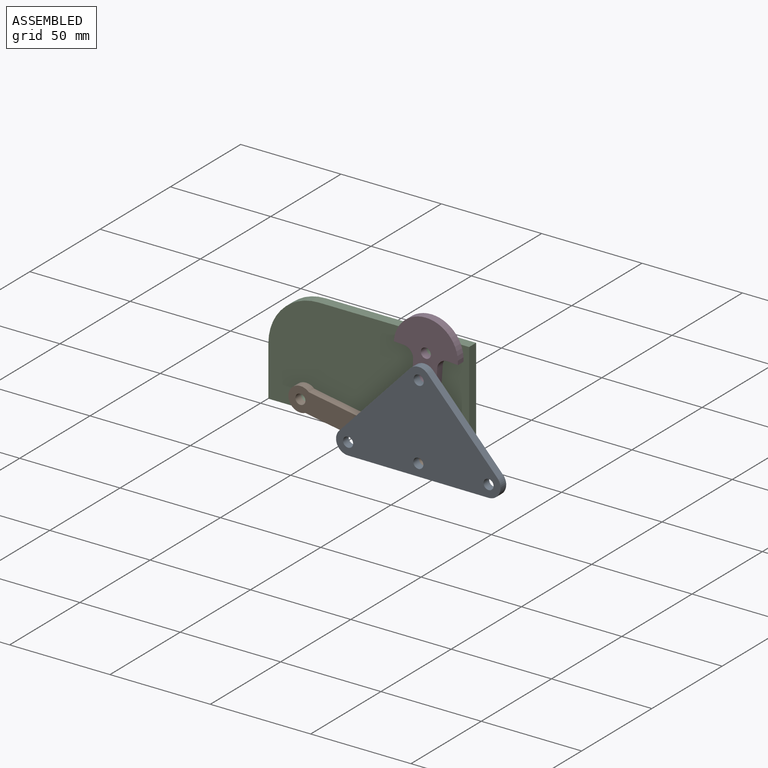
[diagram: assembled view]
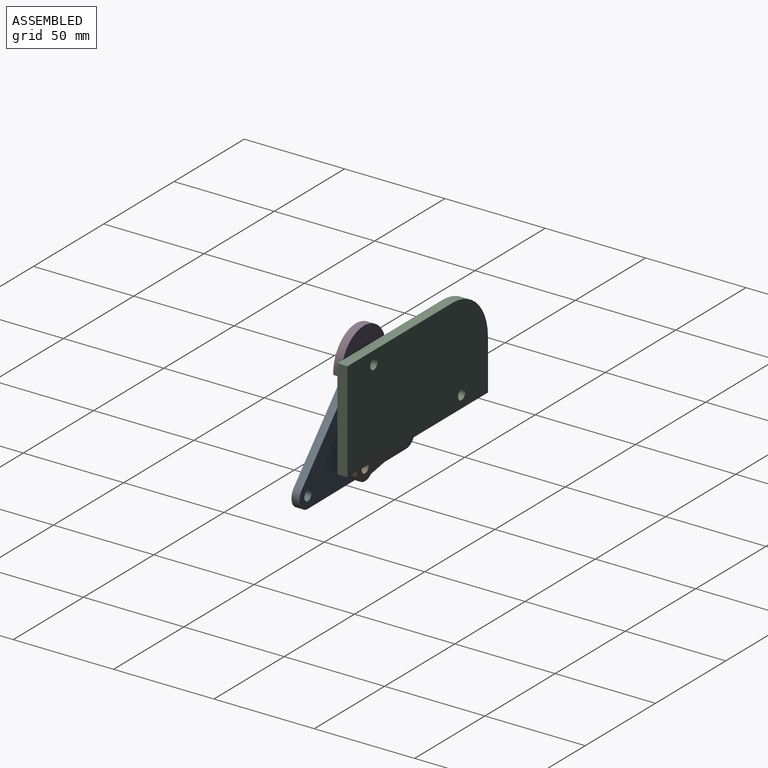
[diagram: assembled view, second angle]
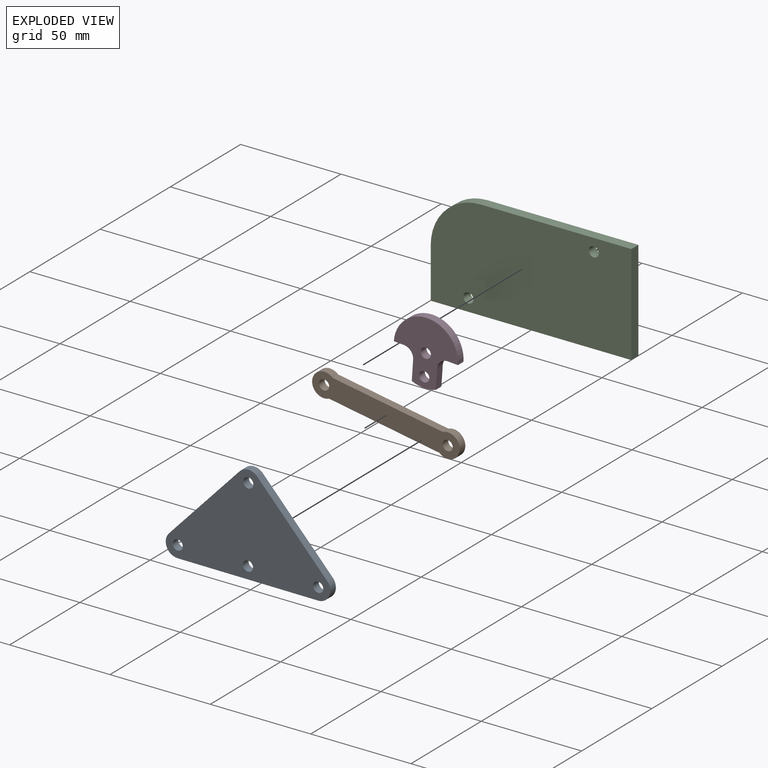
[diagram: exploded view]
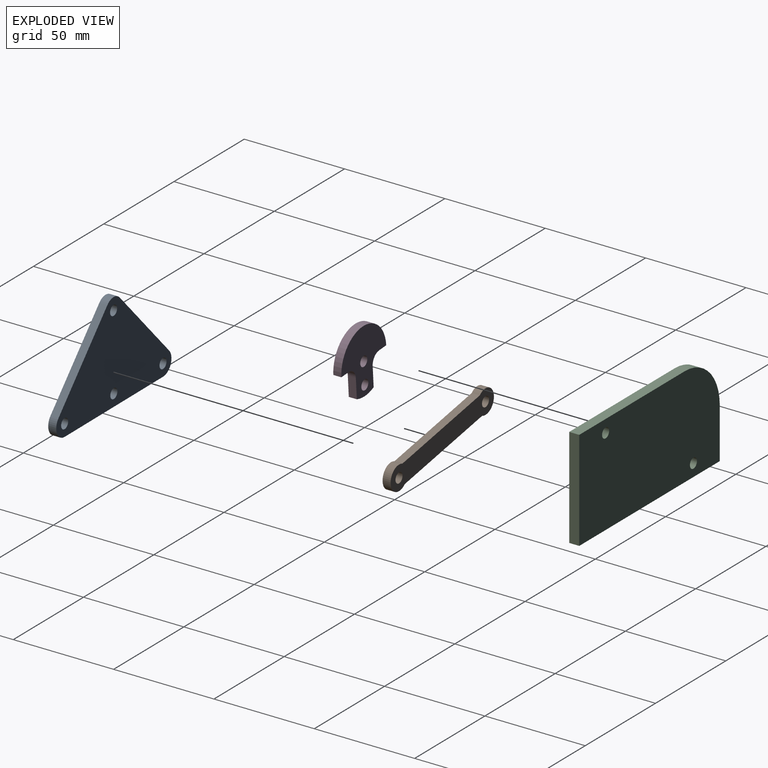
[diagram: exploded view, second angle]
ASSEMBLY  parts=4 mates=4
PART A: 12 faces, bbox 82x4x49.5 mm
  f0: plane 70.28x4mm, normal (0,0,-1), area 281.1mm2, adj f1,f9,f10,f11
  f1: cylinder r=6mm len=10.27mm, axis (0,1,0), area 56.1mm2, adj f0,f2,f10,f11
  f2: plane 37.32x34.83mm, normal (0.73,0,0.68), area 204.2mm2, adj f1,f3,f10,f11
  f3: cylinder r=6mm len=8.77mm, axis (0,1,0), area 39.4mm2, adj f2,f4,f10,f11
  f4: plane 37.32x34.83mm, normal (-0.73,0,0.68), area 204.2mm2, adj f3,f9,f10,f11
  f5: cylinder r=2.5mm len=5mm, axis (0,1,0), area 62.8mm2, adj f10,f11
  f6: cylinder r=2.5mm len=5mm, axis (0,1,0), area 62.8mm2, adj f10,f11
  f7: cylinder r=2.5mm len=5mm, axis (0,1,0), area 62.8mm2, adj f10,f11
  f8: cylinder r=2.5mm len=5mm, axis (0,1,0), area 62.8mm2, adj f10,f11
  f9: cylinder r=6mm len=10.27mm, axis (0,1,0), area 56.1mm2, adj f0,f4,f10,f11
  f10: plane 82x49.5mm, normal (0,-1,0), area 2382.2mm2, adj f0,f1,f2,f3,f4,f5,f6,f7
  f11: plane 82x49.5mm, normal (0,1,0), area 2382.2mm2, adj f0,f1,f2,f3,f4,f5,f6,f7
PART B: 8 faces, bbox 74.5x4x12 mm
  f0: plane 55.87x4mm, normal (0,0,1), area 223.5mm2, adj f1,f4,f6,f7
  f1: cylinder r=6mm len=12mm, axis (0,1,0), area 103.5mm2, adj f0,f2,f6,f7
  f2: plane 55.87x4mm, normal (0,0,-1), area 223.5mm2, adj f1,f4,f6,f7
  f3: cylinder r=2.5mm len=5mm, axis (0,1,0), area 62.8mm2, adj f6,f7
  f4: cylinder r=6mm len=12mm, axis (0,1,0), area 103.5mm2, adj f0,f2,f6,f7
  f5: cylinder r=2.5mm len=5mm, axis (0,1,0), area 62.8mm2, adj f6,f7
  f6: plane 74.5x12mm, normal (0,-1,0), area 707.8mm2, adj f0,f1,f2,f3,f4,f5
  f7: plane 74.5x12mm, normal (0,1,0), area 707.8mm2, adj f0,f1,f2,f3,f4,f5
PART C: 9 faces, bbox 100x5x50 mm
  f0: plane 75x5mm, normal (0,0,1), area 375mm2, adj f5,f6,f7,f8
  f1: plane 25x5mm, normal (-1,0,0), area 125mm2, adj f2,f6,f7,f8
  f2: plane 100x5mm, normal (0,0,-1), area 500mm2, adj f1,f5,f6,f7
  f3: cylinder r=2.5mm len=5mm, axis (0,1,0), area 78.5mm2, adj f6,f7
  f4: cylinder r=2.5mm len=5mm, axis (0,1,0), area 78.5mm2, adj f6,f7
  f5: plane 50x5mm, normal (1,0,0), area 250mm2, adj f0,f2,f6,f7
  f6: plane 100x50mm, normal (0,-1,0), area 4826.6mm2, adj f0,f1,f2,f3,f4,f5,f8
  f7: plane 100x50mm, normal (0,1,0), area 4826.6mm2, adj f0,f1,f2,f3,f4,f5,f8
  f8: cylinder r=25mm len=25mm, axis (0,-1,0), area 196.3mm2, adj f0,f1,f6,f7
PART D: 12 faces, bbox 32x4x32 mm
  f0: cylinder r=5mm len=5mm, axis (0,1,0), area 31.4mm2, adj f1,f8,f10,f11
  f1: plane 5x4mm, normal (1,0,0), area 20mm2, adj f0,f2,f10,f11
  f2: cylinder r=16mm len=32mm, axis (0,1,0), area 201.1mm2, adj f1,f3,f10,f11
  f3: plane 5x4mm, normal (1,0,0), area 20mm2, adj f2,f4,f10,f11
  f4: cylinder r=5mm len=5mm, axis (0,1,0), area 31.4mm2, adj f3,f5,f10,f11
  f5: plane 9.83x4mm, normal (0,0,-1), area 39.3mm2, adj f4,f6,f10,f11
  f6: cylinder r=16mm len=12mm, axis (0,1,0), area 49.2mm2, adj f5,f8,f10,f11
  f7: cylinder r=2.5mm len=5mm, axis (0,1,0), area 62.8mm2, adj f10,f11
  f8: plane 9.83x4mm, normal (0,0,1), area 39.3mm2, adj f0,f6,f10,f11
  f9: cylinder r=2.5mm len=5mm, axis (0,1,0), area 62.8mm2, adj f10,f11
  f10: plane 32x32mm, normal (0,-1,0), area 561mm2, adj f0,f1,f2,f3,f4,f5,f6,f7
  f11: plane 32x32mm, normal (0,1,0), area 561mm2, adj f0,f1,f2,f3,f4,f5,f6,f7
PLACE A rot(axis=(0,1,0),0.3deg) t=(-3.69,-21.28,-24.03)mm
PLACE B rot(axis=(0,1,0),10deg) t=(-65.24,-17.28,-13.19)mm
PLACE C t=(-2.74,-12.28,-13.19)mm fixed
PLACE D rot(axis=(0,1,0),94deg) t=(-2.74,-17.28,24.31)mm
MATE revolute D.f7 <-> C.f4  axis (0,1,0) through (-2.74,-17.28,24.31)mm
MATE revolute A.f8 <-> B.f5  axis (0,1,0) through (-3.69,-21.28,-24.03)mm
MATE revolute D.f9 <-> A.f3  axis (0,-1,0) through (-3.5,-21.28,13.47)mm
MATE revolute B.f1 <-> C.f3  axis (0,1,0) through (-65.24,-17.28,-13.19)mm
